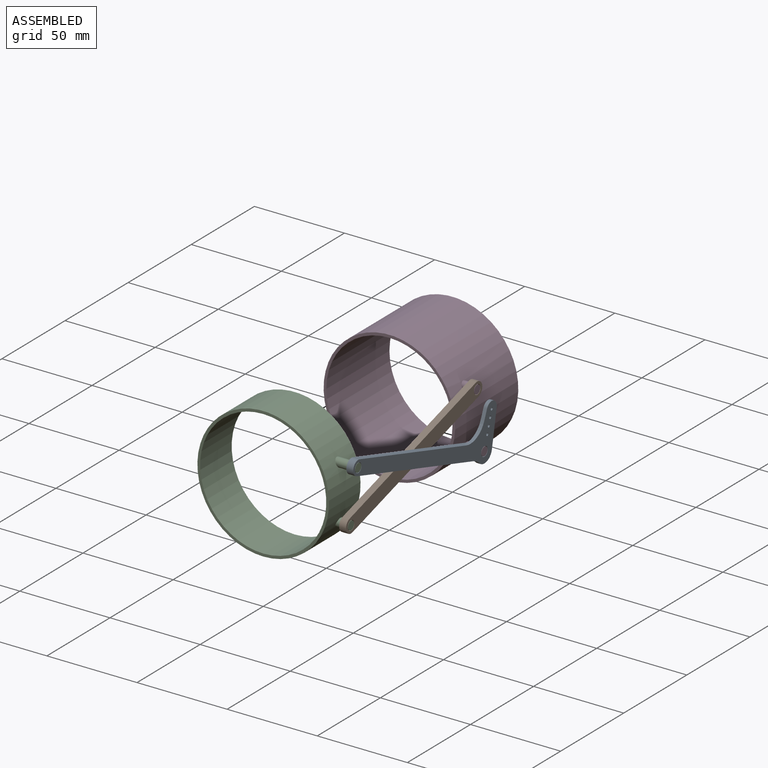
[diagram: assembled view]
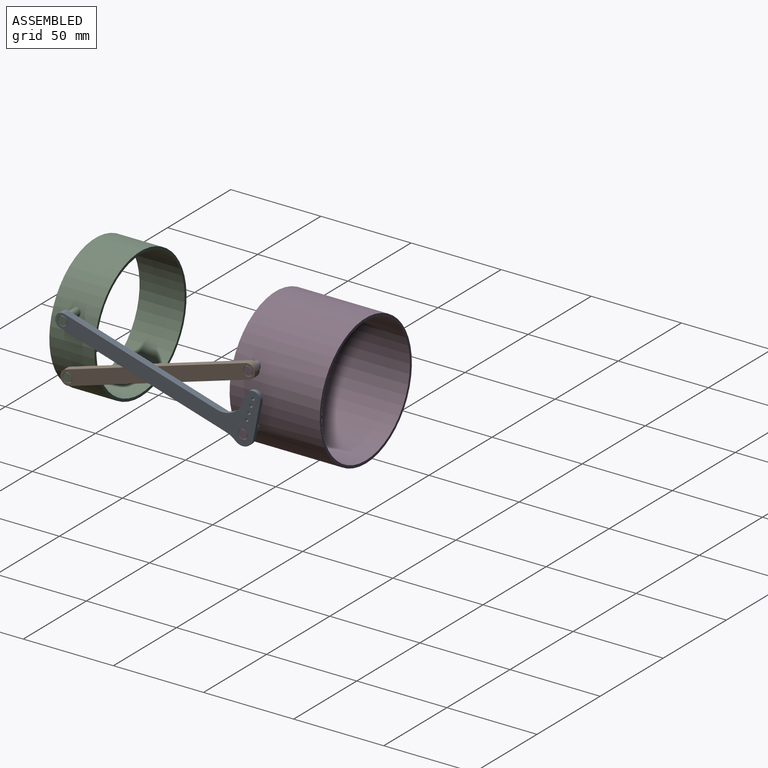
[diagram: assembled view, second angle]
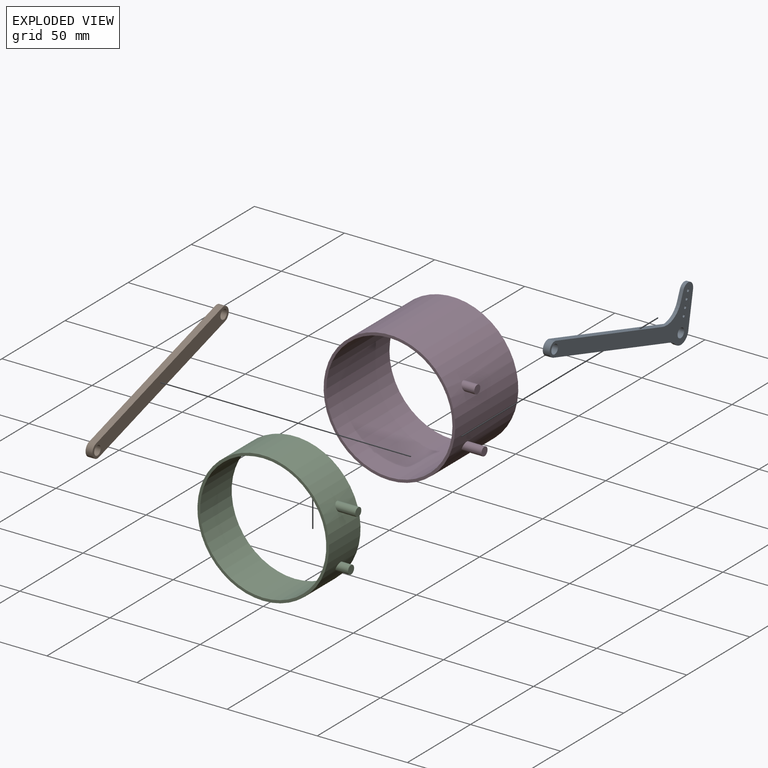
[diagram: exploded view]
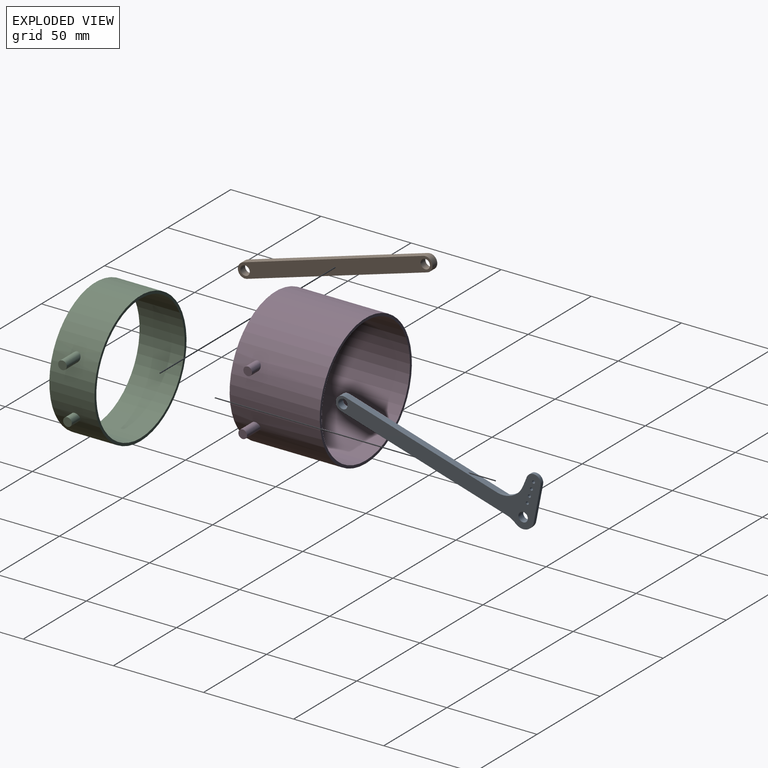
[diagram: exploded view, second angle]
ASSEMBLY  parts=4 mates=4
PART A: 19 faces, bbox 3.8x113.7x40 mm
  f0: cylinder r=4mm len=7.83mm, axis (1,0,0), area 22.6mm2, adj f1,f3,f6,f8
  f1: plane 100x30mm, normal (0,-0.29,-0.96), area 380.2mm2, adj f0,f2,f6,f7,f8,f17
  f2: cylinder r=4mm len=7.83mm, axis (1,0,0), area 47.8mm2, adj f1,f3,f6,f7
  f3: plane 100x30mm, normal (0,0.29,0.96), area 363.8mm2, adj f0,f2,f6,f7,f8,f18
  f4: cylinder r=2.6mm len=5.2mm, axis (1,0,0), area 62.1mm2, adj f6,f7
  f5: cylinder r=2.6mm len=5.2mm, axis (1,0,0), area 62.1mm2, adj f6,f7
  f6: plane 108x38mm, normal (-1,0,0), area 843mm2, adj f0,f1,f2,f3,f4,f5
  f7: plane 113.75x40mm, normal (1,0,0), area 1072.6mm2, adj f1,f2,f3,f4,f5,f9,f10,f11
  f8: plane 29.16x24.39mm, normal (-1,0,0), area 229.6mm2, adj f0,f1,f3,f9,f10,f11,f12,f13
  f9: cylinder r=6mm len=10.06mm, axis (1,0,0), area 25.8mm2, adj f7,f8,f10,f17
  f10: plane 19.54x3.78mm, normal (0,0.98,-0.19), area 39.8mm2, adj f7,f8,f9,f11
  f11: cylinder r=4mm len=7.7mm, axis (1,0,0), area 23.5mm2, adj f7,f8,f10,f15
  f12: cylinder r=0.8mm len=2mm, axis (1,0,0), area 10.1mm2, adj f7,f8
  f13: cylinder r=0.8mm len=2mm, axis (1,0,0), area 10.1mm2, adj f7,f8
  f14: cylinder r=0.8mm len=2mm, axis (1,0,0), area 10.1mm2, adj f7,f8
  f15: plane 5.2x2.15mm, normal (0,-0.92,0.38), area 11.3mm2, adj f7,f8,f11,f18
  f16: cylinder r=0.8mm len=2mm, axis (1,0,0), area 10.1mm2, adj f7,f8
  f17: cylinder r=12mm len=4.88mm, axis (1,0,0), area 11.4mm2, adj f1,f7,f8,f9
  f18: cylinder r=12mm len=14.54mm, axis (-1,0,0), area 35.3mm2, adj f3,f7,f8,f15
PART B: 8 faces, bbox 3.8x108x38 mm
  f0: plane 100x30mm, normal (0,-0.29,0.96), area 396.7mm2, adj f1,f4,f6,f7
  f1: cylinder r=4mm len=7.83mm, axis (1,0,0), area 47.8mm2, adj f0,f2,f6,f7
  f2: plane 100x30mm, normal (0,0.29,-0.96), area 396.7mm2, adj f1,f4,f6,f7
  f3: cylinder r=2.6mm len=5.2mm, axis (1,0,0), area 62.1mm2, adj f6,f7
  f4: cylinder r=4mm len=7.83mm, axis (1,0,0), area 47.8mm2, adj f0,f2,f6,f7
  f5: cylinder r=2.6mm len=5.2mm, axis (1,0,0), area 62.1mm2, adj f6,f7
  f6: plane 108x38mm, normal (-1,0,0), area 843mm2, adj f0,f1,f2,f3,f4,f5
  f7: plane 108x38mm, normal (1,0,0), area 843mm2, adj f0,f1,f2,f3,f4,f5
PART C: 8 faces, bbox 80.5x25x73 mm
  f0: cylinder r=36.5mm len=73mm, axis (0,1,0), area 5694.4mm2, adj f2,f3,f4,f5
  f1: cylinder r=35mm len=70mm, axis (0,1,0), area 5497.8mm2, adj f2,f3
  f2: plane 73x73mm, normal (0,-1,0), area 336.9mm2, adj f0,f1
  f3: plane 73x73mm, normal (0,1,0), area 336.9mm2, adj f0,f1
  f4: cylinder r=2.4mm len=11.91mm, axis (-1,0,0), area 162.5mm2, adj f0,f7
  f5: cylinder r=2.4mm len=7.91mm, axis (-1,0,0), area 102.2mm2, adj f0,f6
  f6: plane 4.8x4.8mm, normal (1,0,0), area 18.1mm2, adj f5
  f7: plane 4.8x4.8mm, normal (1,0,0), area 18.1mm2, adj f4
PART D: 8 faces, bbox 80.5x50x73 mm
  f0: cylinder r=36.5mm len=73mm, axis (0,-1,0), area 11426.9mm2, adj f2,f3,f4,f6
  f1: cylinder r=35mm len=70mm, axis (0,-1,0), area 10995.6mm2, adj f2,f3
  f2: plane 73x73mm, normal (0,1,0), area 336.9mm2, adj f0,f1
  f3: plane 73x73mm, normal (0,-1,0), area 336.9mm2, adj f0,f1
  f4: cylinder r=2.4mm len=7.91mm, axis (-1,0,0), area 102.2mm2, adj f0,f5
  f5: plane 4.8x4.8mm, normal (1,0,0), area 18.1mm2, adj f4
  f6: cylinder r=2.4mm len=11.91mm, axis (-1,0,0), area 162.5mm2, adj f0,f7
  f7: plane 4.8x4.8mm, normal (1,0,0), area 18.1mm2, adj f6
PLACE A at identity
PLACE B at identity
PLACE C at identity
PLACE D at identity fixed
MATE revolute C.f4 <-> A.f2  axis (1,0,0) through (44,-87.5,15)mm
MATE revolute D.f6 <-> A.f0  axis (1,0,0) through (44,12.5,-15)mm
MATE revolute D.f4 <-> B.f4  axis (1,0,0) through (40,12.5,15)mm
MATE revolute C.f5 <-> B.f1  axis (1,0,0) through (40,-87.5,-15)mm
